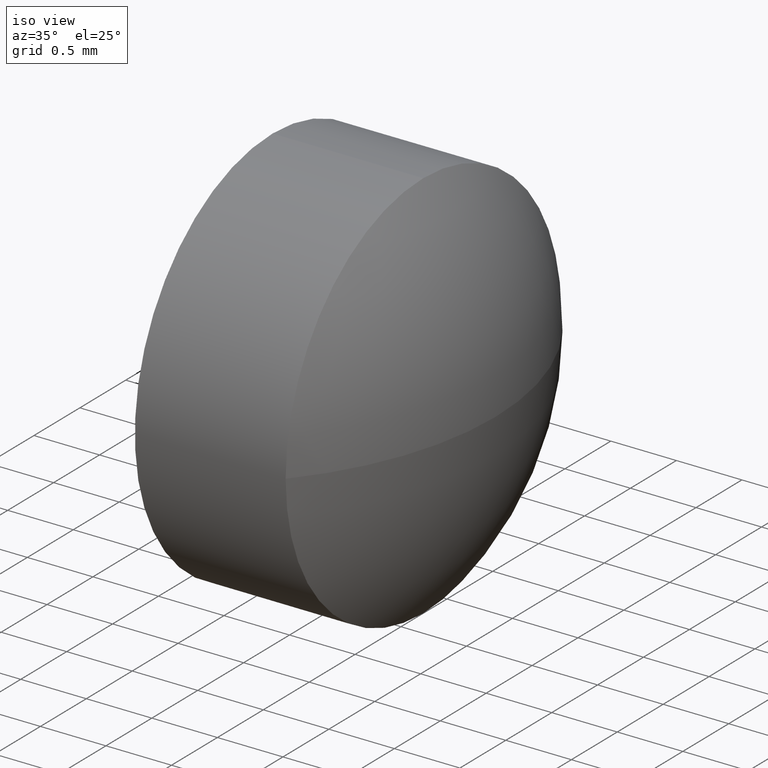
[diagram: clean part render]
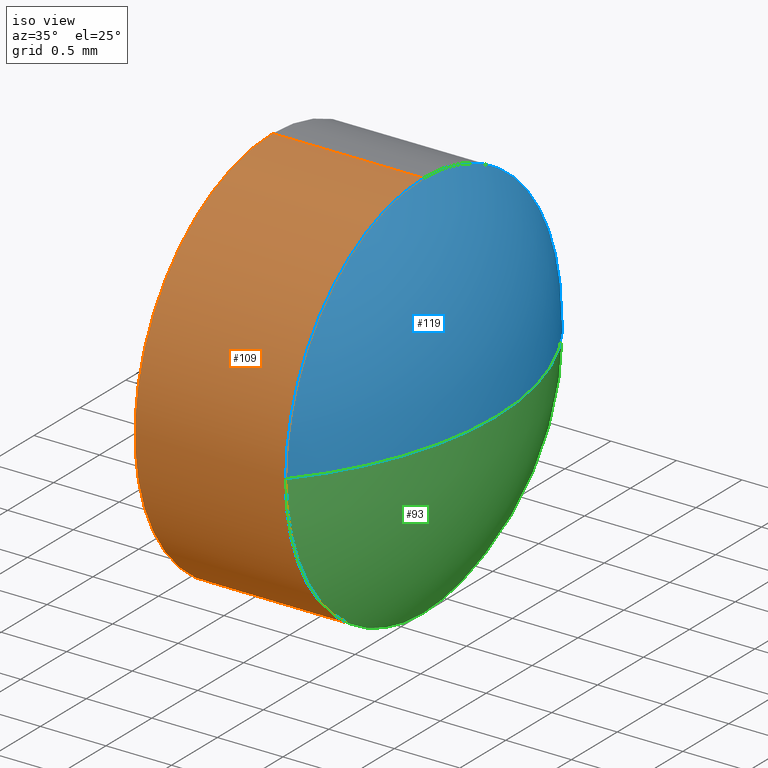
[diagram: same view with three faces highlighted in distinct colors, each labeled with its STEP entity id]
A machine part, iso view with three faces highlighted in distinct colors.
Their STEP definitions:

[orange] entity #109 — the highlighted cylindrical surface (partial cylindrical patch) has radius 1.5 mm, axis along (-1, -0, -0).
#5 = VERTEX_POINT ( 'NONE', #108 ) ;
#7 = AXIS2_PLACEMENT_3D ( 'NONE', #41, #154, #15 ) ;
#11 = DIRECTION ( 'NONE',  ( -1.000000000000000000, -0.0000000000000000000, -0.0000000000000000000 ) ) ;
#15 = DIRECTION ( 'NONE',  ( 0.0000000000000000000, 0.0000000000000000000, 1.000000000000000000 ) ) ;
#24 = CARTESIAN_POINT ( 'NONE',  ( 533.0845595379046200, 125.1230185233483600, 1.499984999999981500 ) ) ;
#25 = EDGE_LOOP ( 'NONE', ( #125, #145, #97, #162, #27 ) ) ;
#27 = ORIENTED_EDGE ( 'NONE', *, *, #37, .F. ) ;
#28 = DIRECTION ( 'NONE',  ( -1.000000000000000000, -0.0000000000000000000, -0.0000000000000000000 ) ) ;
#30 = DIRECTION ( 'NONE',  ( 0.0000000000000000000, 0.0000000000000000000, 1.000000000000000000 ) ) ;
#35 = VECTOR ( 'NONE', #175, 1000.000000000000000 ) ;
#37 = EDGE_CURVE ( 'NONE', #173, #5, #185, .T. ) ;
#40 = CARTESIAN_POINT ( 'NONE',  ( 533.0845595379046200, 123.6230335233483800, -1.836951829018992800E-016 ) ) ;
#41 = CARTESIAN_POINT ( 'NONE',  ( 533.0845595379046200, 125.1230185233483600, 0.0000000000000000000 ) ) ;
#47 = CIRCLE ( 'NONE', #7, 1.499984999999981500 ) ;
#55 = VERTEX_POINT ( 'NONE', #40 ) ;
#58 = EDGE_CURVE ( 'NONE', #86, #5, #147, .T. ) ;
#64 = CARTESIAN_POINT ( 'NONE',  ( 531.9345710379045600, 125.1230185233483600, -1.499984999999981500 ) ) ;
#67 = CYLINDRICAL_SURFACE ( 'NONE', #87, 1.499984999999981500 ) ;
#69 = AXIS2_PLACEMENT_3D ( 'NONE', #174, #28, #30 ) ;
#71 = FACE_OUTER_BOUND ( 'NONE', #25, .T. ) ;
#74 = CARTESIAN_POINT ( 'NONE',  ( 531.9345710379045600, 125.1230185233483600, 0.0000000000000000000 ) ) ;
#75 = DIRECTION ( 'NONE',  ( 0.0000000000000000000, 0.0000000000000000000, 1.000000000000000000 ) ) ;
#77 = CARTESIAN_POINT ( 'NONE',  ( 531.7030729802447700, 125.1230185233483600, 1.499984999999981500 ) ) ;
#81 = VECTOR ( 'NONE', #11, 1000.000000000000000 ) ;
#86 = VERTEX_POINT ( 'NONE', #24 ) ;
#87 = AXIS2_PLACEMENT_3D ( 'NONE', #158, #127, #95 ) ;
#90 = EDGE_CURVE ( 'NONE', #138, #55, #144, .T. ) ;
#95 = DIRECTION ( 'NONE',  ( 0.0000000000000000000, 0.0000000000000000000, 1.000000000000000000 ) ) ;
#97 = ORIENTED_EDGE ( 'NONE', *, *, #116, .T. ) ;
#99 = EDGE_CURVE ( 'NONE', #138, #173, #132, .T. ) ;
#108 = CARTESIAN_POINT ( 'NONE',  ( 531.9345710379045600, 125.1230185233483600, 1.499984999999981500 ) ) ;
#109 = ADVANCED_FACE ( 'NONE', ( #71 ), #67, .T. ) ;
#116 = EDGE_CURVE ( 'NONE', #55, #86, #47, .T. ) ;
#121 = DIRECTION ( 'NONE',  ( -1.000000000000000000, -0.0000000000000000000, -0.0000000000000000000 ) ) ;
#123 = CARTESIAN_POINT ( 'NONE',  ( 531.7030729802447700, 125.1230185233483600, -1.499984999999981500 ) ) ;
#125 = ORIENTED_EDGE ( 'NONE', *, *, #99, .F. ) ;
#127 = DIRECTION ( 'NONE',  ( -1.000000000000000000, -0.0000000000000000000, -0.0000000000000000000 ) ) ;
#132 = LINE ( 'NONE', #123, #35 ) ;
#138 = VERTEX_POINT ( 'NONE', #186 ) ;
#142 = AXIS2_PLACEMENT_3D ( 'NONE', #74, #121, #75 ) ;
#144 = CIRCLE ( 'NONE', #69, 1.499984999999981500 ) ;
#145 = ORIENTED_EDGE ( 'NONE', *, *, #90, .T. ) ;
#147 = LINE ( 'NONE', #77, #81 ) ;
#154 = DIRECTION ( 'NONE',  ( -1.000000000000000000, -0.0000000000000000000, -0.0000000000000000000 ) ) ;
#158 = CARTESIAN_POINT ( 'NONE',  ( 531.7030729802447700, 125.1230185233483600, 0.0000000000000000000 ) ) ;
#162 = ORIENTED_EDGE ( 'NONE', *, *, #58, .T. ) ;
#173 = VERTEX_POINT ( 'NONE', #64 ) ;
#174 = CARTESIAN_POINT ( 'NONE',  ( 533.0845595379046200, 125.1230185233483600, 0.0000000000000000000 ) ) ;
#175 = DIRECTION ( 'NONE',  ( -1.000000000000000000, -0.0000000000000000000, -0.0000000000000000000 ) ) ;
#185 = CIRCLE ( 'NONE', #142, 1.499984999999981500 ) ;
#186 = CARTESIAN_POINT ( 'NONE',  ( 533.0845595379046200, 125.1230185233483600, -1.499984999999981500 ) ) ;

[blue] entity #119 — the highlighted spherical surface has radius 2.3204 mm.
#3 = CARTESIAN_POINT ( 'NONE',  ( 533.6345540379046500, 125.1230185233483400, 0.0000000000000000000 ) ) ;
#4 = DIRECTION ( 'NONE',  ( 0.0000000000000000000, 1.000000000000000000, 0.0000000000000000000 ) ) ;
#7 = AXIS2_PLACEMENT_3D ( 'NONE', #41, #154, #15 ) ;
#12 = DIRECTION ( 'NONE',  ( 0.0000000000000000000, 1.224646799147353200E-016, -1.000000000000000000 ) ) ;
#15 = DIRECTION ( 'NONE',  ( 0.0000000000000000000, 0.0000000000000000000, 1.000000000000000000 ) ) ;
#17 = CARTESIAN_POINT ( 'NONE',  ( 531.3141226969954700, 125.1230185233483400, 0.0000000000000000000 ) ) ;
#21 = ORIENTED_EDGE ( 'NONE', *, *, #167, .F. ) ;
#24 = CARTESIAN_POINT ( 'NONE',  ( 533.0845595379046200, 125.1230185233483600, 1.499984999999981500 ) ) ;
#32 = DIRECTION ( 'NONE',  ( 0.0000000000000000000, 1.000000000000000000, 1.224646799147354700E-016 ) ) ;
#38 = CARTESIAN_POINT ( 'NONE',  ( 533.0845595379046200, 125.1230185233483600, 0.0000000000000000000 ) ) ;
#40 = CARTESIAN_POINT ( 'NONE',  ( 533.0845595379046200, 123.6230335233483800, -1.836951829018992800E-016 ) ) ;
#41 = CARTESIAN_POINT ( 'NONE',  ( 533.0845595379046200, 125.1230185233483600, 0.0000000000000000000 ) ) ;
#44 = CARTESIAN_POINT ( 'NONE',  ( 531.3141226969954700, 125.1230185233483400, 0.0000000000000000000 ) ) ;
#45 = ORIENTED_EDGE ( 'NONE', *, *, #128, .T. ) ;
#47 = CIRCLE ( 'NONE', #7, 1.499984999999981500 ) ;
#48 = AXIS2_PLACEMENT_3D ( 'NONE', #44, #63, #4 ) ;
#51 = CARTESIAN_POINT ( 'NONE',  ( 531.3141226969954700, 125.1230185233483400, 0.0000000000000000000 ) ) ;
#55 = VERTEX_POINT ( 'NONE', #40 ) ;
#62 = CIRCLE ( 'NONE', #151, 1.499984999999981500 ) ;
#63 = DIRECTION ( 'NONE',  ( -0.0000000000000000000, 0.0000000000000000000, -1.000000000000000000 ) ) ;
#73 = AXIS2_PLACEMENT_3D ( 'NONE', #51, #184, #111 ) ;
#82 = EDGE_CURVE ( 'NONE', #86, #164, #62, .T. ) ;
#84 = EDGE_LOOP ( 'NONE', ( #21, #45, #118, #134 ) ) ;
#86 = VERTEX_POINT ( 'NONE', #24 ) ;
#88 = CIRCLE ( 'NONE', #117, 2.320431340909118000 ) ;
#91 = DIRECTION ( 'NONE',  ( 0.0000000000000000000, 0.0000000000000000000, 1.000000000000000000 ) ) ;
#105 = CIRCLE ( 'NONE', #73, 2.320431340909090400 ) ;
#111 = DIRECTION ( 'NONE',  ( 1.000000000000000000, 0.0000000000000000000, 0.0000000000000000000 ) ) ;
#113 = CARTESIAN_POINT ( 'NONE',  ( 533.0845595379046200, 126.6230035233483200, 0.0000000000000000000 ) ) ;
#115 = SPHERICAL_SURFACE ( 'NONE', #48, 2.320431340909120600 ) ;
#116 = EDGE_CURVE ( 'NONE', #55, #86, #47, .T. ) ;
#117 = AXIS2_PLACEMENT_3D ( 'NONE', #17, #12, #32 ) ;
#118 = ORIENTED_EDGE ( 'NONE', *, *, #82, .F. ) ;
#119 = ADVANCED_FACE ( 'NONE', ( #157 ), #115, .T. ) ;
#128 = EDGE_CURVE ( 'NONE', #180, #164, #105, .T. ) ;
#134 = ORIENTED_EDGE ( 'NONE', *, *, #116, .F. ) ;
#151 = AXIS2_PLACEMENT_3D ( 'NONE', #38, #181, #91 ) ;
#154 = DIRECTION ( 'NONE',  ( -1.000000000000000000, -0.0000000000000000000, -0.0000000000000000000 ) ) ;
#157 = FACE_OUTER_BOUND ( 'NONE', #84, .T. ) ;
#164 = VERTEX_POINT ( 'NONE', #113 ) ;
#167 = EDGE_CURVE ( 'NONE', #180, #55, #88, .T. ) ;
#180 = VERTEX_POINT ( 'NONE', #3 ) ;
#181 = DIRECTION ( 'NONE',  ( -1.000000000000000000, -0.0000000000000000000, -0.0000000000000000000 ) ) ;
#184 = DIRECTION ( 'NONE',  ( -0.0000000000000000000, 0.0000000000000000000, 1.000000000000000000 ) ) ;

[green] entity #93 — the highlighted spherical surface has radius 2.3204 mm.
#3 = CARTESIAN_POINT ( 'NONE',  ( 533.6345540379046500, 125.1230185233483400, 0.0000000000000000000 ) ) ;
#9 = SPHERICAL_SURFACE ( 'NONE', #163, 2.320431340909120600 ) ;
#12 = DIRECTION ( 'NONE',  ( 0.0000000000000000000, 1.224646799147353200E-016, -1.000000000000000000 ) ) ;
#13 = EDGE_CURVE ( 'NONE', #164, #138, #165, .T. ) ;
#16 = DIRECTION ( 'NONE',  ( -0.0000000000000000000, 0.0000000000000000000, -1.000000000000000000 ) ) ;
#17 = CARTESIAN_POINT ( 'NONE',  ( 531.3141226969954700, 125.1230185233483400, 0.0000000000000000000 ) ) ;
#22 = AXIS2_PLACEMENT_3D ( 'NONE', #60, #183, #102 ) ;
#28 = DIRECTION ( 'NONE',  ( -1.000000000000000000, -0.0000000000000000000, -0.0000000000000000000 ) ) ;
#30 = DIRECTION ( 'NONE',  ( 0.0000000000000000000, 0.0000000000000000000, 1.000000000000000000 ) ) ;
#32 = DIRECTION ( 'NONE',  ( 0.0000000000000000000, 1.000000000000000000, 1.224646799147354700E-016 ) ) ;
#40 = CARTESIAN_POINT ( 'NONE',  ( 533.0845595379046200, 123.6230335233483800, -1.836951829018992800E-016 ) ) ;
#51 = CARTESIAN_POINT ( 'NONE',  ( 531.3141226969954700, 125.1230185233483400, 0.0000000000000000000 ) ) ;
#52 = DIRECTION ( 'NONE',  ( 0.0000000000000000000, 1.000000000000000000, 0.0000000000000000000 ) ) ;
#53 = EDGE_LOOP ( 'NONE', ( #168, #177, #114, #178 ) ) ;
#55 = VERTEX_POINT ( 'NONE', #40 ) ;
#60 = CARTESIAN_POINT ( 'NONE',  ( 533.0845595379046200, 125.1230185233483600, 0.0000000000000000000 ) ) ;
#69 = AXIS2_PLACEMENT_3D ( 'NONE', #174, #28, #30 ) ;
#73 = AXIS2_PLACEMENT_3D ( 'NONE', #51, #184, #111 ) ;
#83 = CARTESIAN_POINT ( 'NONE',  ( 531.3141226969954700, 125.1230185233483400, 0.0000000000000000000 ) ) ;
#88 = CIRCLE ( 'NONE', #117, 2.320431340909118000 ) ;
#90 = EDGE_CURVE ( 'NONE', #138, #55, #144, .T. ) ;
#93 = ADVANCED_FACE ( 'NONE', ( #100 ), #9, .T. ) ;
#100 = FACE_OUTER_BOUND ( 'NONE', #53, .T. ) ;
#102 = DIRECTION ( 'NONE',  ( 0.0000000000000000000, 0.0000000000000000000, 1.000000000000000000 ) ) ;
#105 = CIRCLE ( 'NONE', #73, 2.320431340909090400 ) ;
#111 = DIRECTION ( 'NONE',  ( 1.000000000000000000, 0.0000000000000000000, 0.0000000000000000000 ) ) ;
#113 = CARTESIAN_POINT ( 'NONE',  ( 533.0845595379046200, 126.6230035233483200, 0.0000000000000000000 ) ) ;
#114 = ORIENTED_EDGE ( 'NONE', *, *, #90, .F. ) ;
#117 = AXIS2_PLACEMENT_3D ( 'NONE', #17, #12, #32 ) ;
#128 = EDGE_CURVE ( 'NONE', #180, #164, #105, .T. ) ;
#138 = VERTEX_POINT ( 'NONE', #186 ) ;
#144 = CIRCLE ( 'NONE', #69, 1.499984999999981500 ) ;
#163 = AXIS2_PLACEMENT_3D ( 'NONE', #83, #16, #52 ) ;
#164 = VERTEX_POINT ( 'NONE', #113 ) ;
#165 = CIRCLE ( 'NONE', #22, 1.499984999999981500 ) ;
#167 = EDGE_CURVE ( 'NONE', #180, #55, #88, .T. ) ;
#168 = ORIENTED_EDGE ( 'NONE', *, *, #128, .F. ) ;
#174 = CARTESIAN_POINT ( 'NONE',  ( 533.0845595379046200, 125.1230185233483600, 0.0000000000000000000 ) ) ;
#177 = ORIENTED_EDGE ( 'NONE', *, *, #167, .T. ) ;
#178 = ORIENTED_EDGE ( 'NONE', *, *, #13, .F. ) ;
#180 = VERTEX_POINT ( 'NONE', #3 ) ;
#183 = DIRECTION ( 'NONE',  ( -1.000000000000000000, -0.0000000000000000000, -0.0000000000000000000 ) ) ;
#184 = DIRECTION ( 'NONE',  ( -0.0000000000000000000, 0.0000000000000000000, 1.000000000000000000 ) ) ;
#186 = CARTESIAN_POINT ( 'NONE',  ( 533.0845595379046200, 125.1230185233483600, -1.499984999999981500 ) ) ;